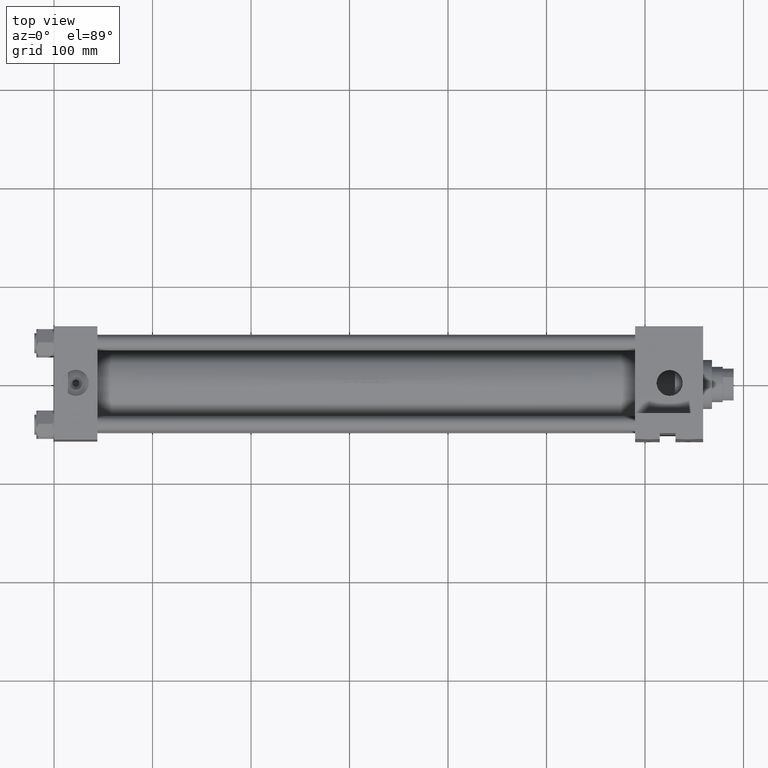
[diagram: clean part render]
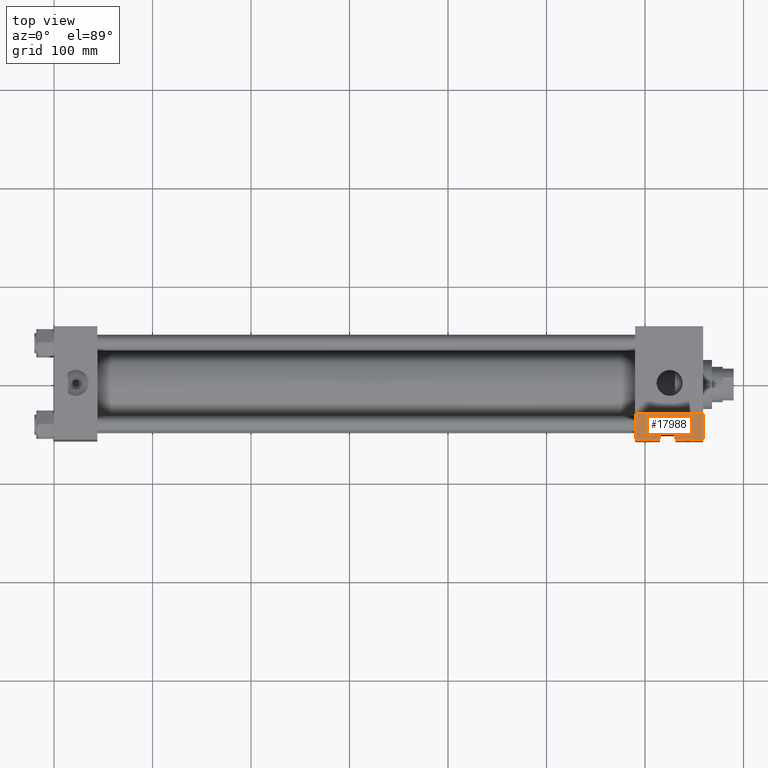
[diagram: same view with one face highlighted and labeled with its STEP entity id]
A machine part, top view. The second image highlights one B-rep face of the part: STEP entity #17988.
In plain terms, the highlighted planar face has unit normal (0, 0, 1).
Its self-contained STEP definition (entity closure, byte-faithful):
#436 = CARTESIAN_POINT ( 'NONE',  ( 590.0000000000001137, -92.50000000000008527, -31.49999999999997158 ) ) ;
#856 = VERTEX_POINT ( 'NONE', #31374 ) ;
#1401 = ORIENTED_EDGE ( 'NONE', *, *, #39115, .F. ) ;
#1516 = ORIENTED_EDGE ( 'NONE', *, *, #18871, .F. ) ;
#1886 = VECTOR ( 'NONE', #9475, 1000.000000000000000 ) ;
#2009 = ORIENTED_EDGE ( 'NONE', *, *, #12766, .T. ) ;
#3302 = DIRECTION ( 'NONE',  ( -0.000000000000000000, -0.000000000000000000, -1.000000000000000000 ) ) ;
#3309 = VERTEX_POINT ( 'NONE', #45535 ) ;
#3391 = ORIENTED_EDGE ( 'NONE', *, *, #16868, .F. ) ;
#4130 = CARTESIAN_POINT ( 'NONE',  ( 615.0000000000000000, -92.49999999999994316, -51.49999999999997868 ) ) ;
#4170 = VECTOR ( 'NONE', #17856, 1000.000000000000000 ) ;
#4658 = EDGE_CURVE ( 'NONE', #16215, #12580, #7319, .T. ) ;
#5015 = ORIENTED_EDGE ( 'NONE', *, *, #29322, .T. ) ;
#5102 = DIRECTION ( 'NONE',  ( 0.000000000000000000, -1.000000000000000000, 0.000000000000000000 ) ) ;
#6966 = CARTESIAN_POINT ( 'NONE',  ( 631.0000000000000000, -92.49999999999994316, -51.49999999999997868 ) ) ;
#7319 = LINE ( 'NONE', #23362, #1886 ) ;
#7445 = CARTESIAN_POINT ( 'NONE',  ( 615.0000000000000000, -92.49999999999994316, -57.49999999999997158 ) ) ;
#7812 = CARTESIAN_POINT ( 'NONE',  ( 659.0000000000000000, -92.50000000000008527, -31.49999999999997158 ) ) ;
#9315 = ORIENTED_EDGE ( 'NONE', *, *, #19325, .F. ) ;
#9475 = DIRECTION ( 'NONE',  ( -0.000000000000000000, -0.000000000000000000, -1.000000000000000000 ) ) ;
#9901 = LINE ( 'NONE', #6966, #37638 ) ;
#10641 = VERTEX_POINT ( 'NONE', #16892 ) ;
#12091 = VERTEX_POINT ( 'NONE', #42795 ) ;
#12580 = VERTEX_POINT ( 'NONE', #7445 ) ;
#12766 = EDGE_CURVE ( 'NONE', #12091, #26007, #36575, .T. ) ;
#12890 = CARTESIAN_POINT ( 'NONE',  ( 590.0000000000001137, -92.50000000000008527, -57.49999999999997158 ) ) ;
#13718 = ORIENTED_EDGE ( 'NONE', *, *, #18370, .T. ) ;
#14467 = ORIENTED_EDGE ( 'NONE', *, *, #4658, .F. ) ;
#14762 = CARTESIAN_POINT ( 'NONE',  ( 590.0000000000001137, -92.50000000000008527, -31.49999999999997158 ) ) ;
#16215 = VERTEX_POINT ( 'NONE', #4130 ) ;
#16868 = EDGE_CURVE ( 'NONE', #12580, #39960, #27958, .T. ) ;
#16892 = CARTESIAN_POINT ( 'NONE',  ( 659.0000000000000000, -92.50000000000008527, -57.49999999999997158 ) ) ;
#17635 = LINE ( 'NONE', #24955, #17750 ) ;
#17750 = VECTOR ( 'NONE', #21771, 1000.000000000000000 ) ;
#17856 = DIRECTION ( 'NONE',  ( -1.000000000000000000, -0.000000000000000000, -0.000000000000000000 ) ) ;
#17988 = ADVANCED_FACE ( 'NONE', ( #27253 ), #42069, .T. ) ;
#18370 = EDGE_CURVE ( 'NONE', #3309, #856, #9901, .T. ) ;
#18397 = LINE ( 'NONE', #14762, #32407 ) ;
#18871 = EDGE_CURVE ( 'NONE', #12091, #10641, #27024, .T. ) ;
#19325 = EDGE_CURVE ( 'NONE', #3309, #16215, #42237, .T. ) ;
#19943 = DIRECTION ( 'NONE',  ( 0.000000000000000000, -0.000000000000000000, -1.000000000000000000 ) ) ;
#21771 = DIRECTION ( 'NONE',  ( -1.000000000000000000, -0.000000000000000000, -0.000000000000000000 ) ) ;
#23362 = CARTESIAN_POINT ( 'NONE',  ( 615.0000000000000000, -92.49999999999994316, -51.49999999999997868 ) ) ;
#23606 = CARTESIAN_POINT ( 'NONE',  ( 590.0000000000001137, -92.50000000000008527, -31.49999999999997158 ) ) ;
#24955 = CARTESIAN_POINT ( 'NONE',  ( 590.0000000000001137, -92.50000000000008527, -57.49999999999997158 ) ) ;
#25440 = CARTESIAN_POINT ( 'NONE',  ( 590.0000000000001137, -92.50000000000008527, -57.49999999999997158 ) ) ;
#25947 = DIRECTION ( 'NONE',  ( 0.000000000000000000, 0.000000000000000000, -1.000000000000000000 ) ) ;
#26007 = VERTEX_POINT ( 'NONE', #436 ) ;
#26015 = VECTOR ( 'NONE', #45731, 1000.000000000000000 ) ;
#27024 = LINE ( 'NONE', #7812, #26015 ) ;
#27253 = FACE_OUTER_BOUND ( 'NONE', #43404, .T. ) ;
#27958 = LINE ( 'NONE', #12890, #30627 ) ;
#29322 = EDGE_CURVE ( 'NONE', #26007, #39960, #18397, .T. ) ;
#30627 = VECTOR ( 'NONE', #31583, 1000.000000000000000 ) ;
#31374 = CARTESIAN_POINT ( 'NONE',  ( 631.0000000000000000, -92.49999999999994316, -57.49999999999997158 ) ) ;
#31583 = DIRECTION ( 'NONE',  ( -1.000000000000000000, -0.000000000000000000, -0.000000000000000000 ) ) ;
#32407 = VECTOR ( 'NONE', #25947, 1000.000000000000000 ) ;
#35661 = DIRECTION ( 'NONE',  ( -1.000000000000000000, -0.000000000000000000, -0.000000000000000000 ) ) ;
#36575 = LINE ( 'NONE', #39979, #4170 ) ;
#37638 = VECTOR ( 'NONE', #3302, 1000.000000000000000 ) ;
#38398 = AXIS2_PLACEMENT_3D ( 'NONE', #23606, #5102, #19943 ) ;
#39115 = EDGE_CURVE ( 'NONE', #10641, #856, #17635, .T. ) ;
#39299 = CARTESIAN_POINT ( 'NONE',  ( 615.0000000000000000, -92.49999999999994316, -51.49999999999997868 ) ) ;
#39960 = VERTEX_POINT ( 'NONE', #25440 ) ;
#39979 = CARTESIAN_POINT ( 'NONE',  ( 590.0000000000001137, -92.50000000000008527, -31.49999999999997158 ) ) ;
#42069 = PLANE ( 'NONE',  #38398 ) ;
#42237 = LINE ( 'NONE', #39299, #44653 ) ;
#42795 = CARTESIAN_POINT ( 'NONE',  ( 659.0000000000000000, -92.50000000000008527, -31.49999999999997158 ) ) ;
#43404 = EDGE_LOOP ( 'NONE', ( #13718, #1401, #1516, #2009, #5015, #3391, #14467, #9315 ) ) ;
#44653 = VECTOR ( 'NONE', #35661, 1000.000000000000000 ) ;
#45535 = CARTESIAN_POINT ( 'NONE',  ( 631.0000000000000000, -92.50000000000008527, -51.49999999999997868 ) ) ;
#45731 = DIRECTION ( 'NONE',  ( 0.000000000000000000, 0.000000000000000000, -1.000000000000000000 ) ) ;